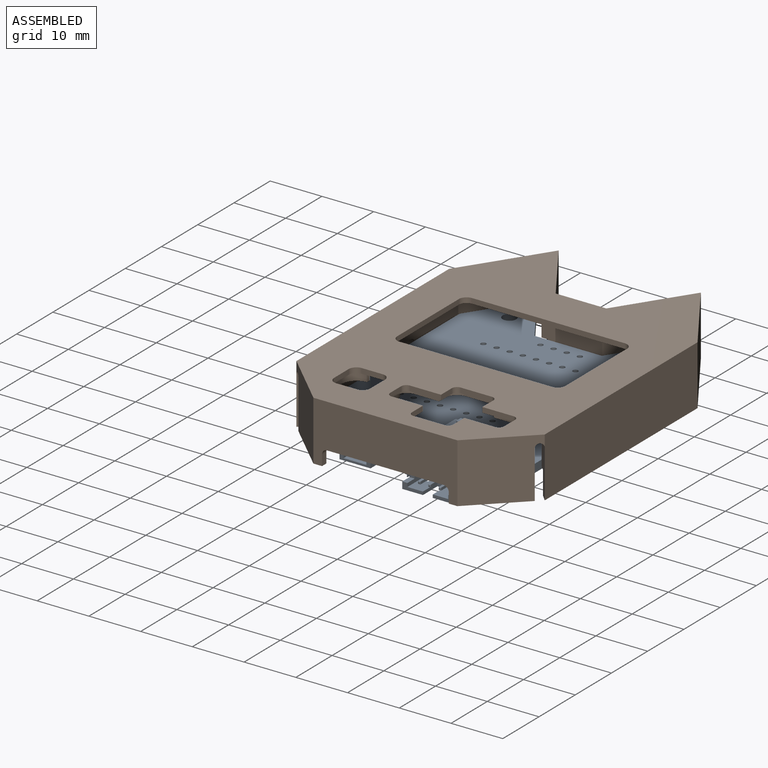
[diagram: assembled view]
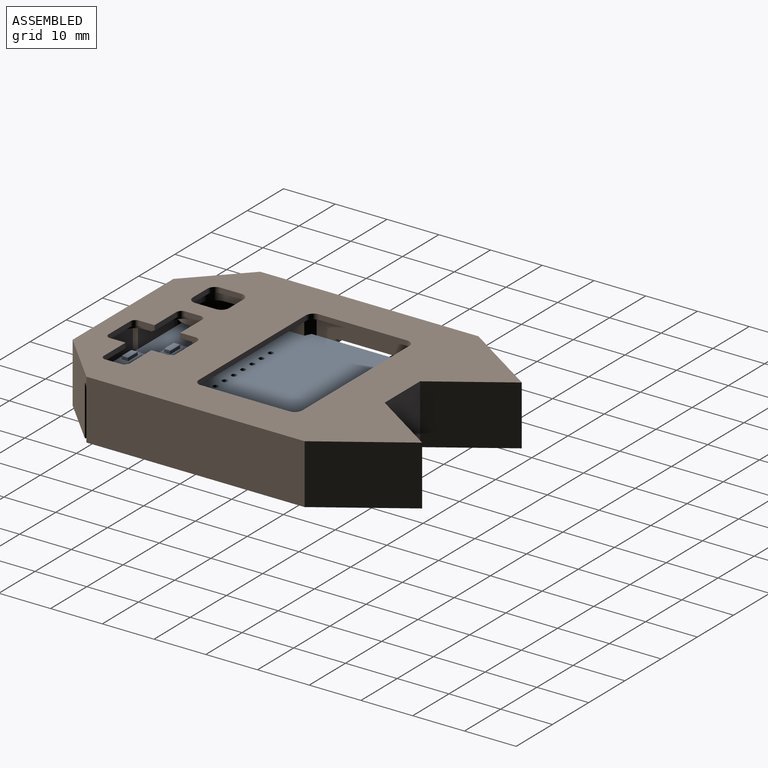
[diagram: assembled view, second angle]
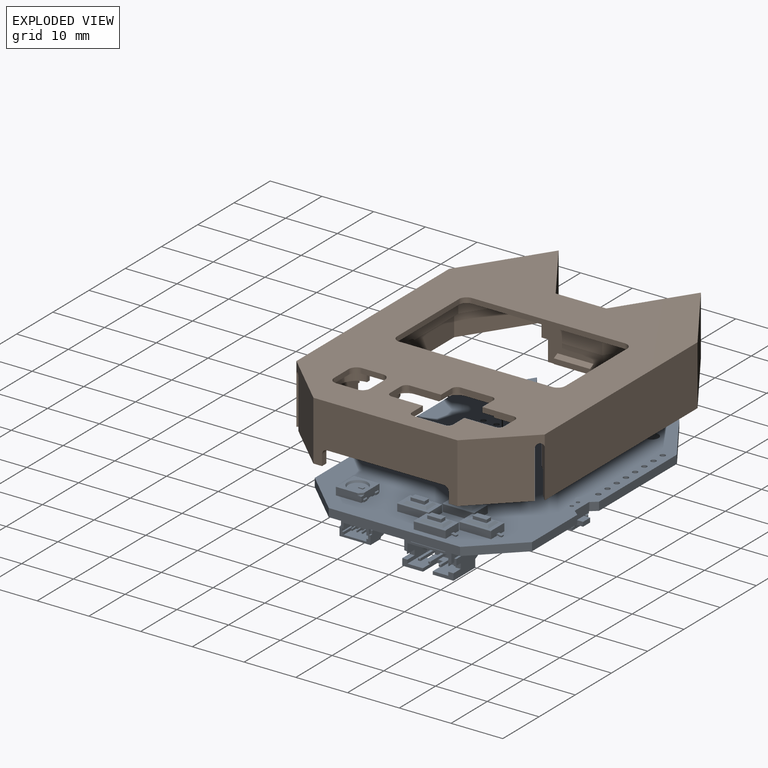
[diagram: exploded view]
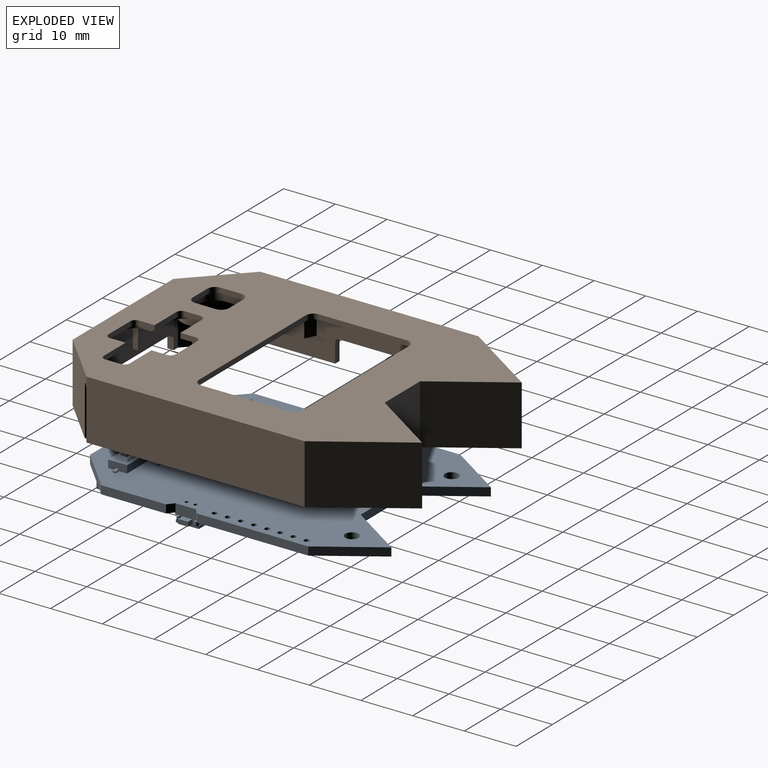
[diagram: exploded view, second angle]
FCSTD DOCUMENT  (FreeCAD 0.20R29410 (Git))
Label: v1.0_Case-Top_v3-Nugget
License: All rights reserved
LicenseURL: http://en.wikipedia.org/wiki/All_rights_reserved
objects: Sketcher::SketchObject×15, Part::Feature×12, PartDesign::Pocket×8, App::Part×7, PartDesign::Pad×6, App::Link×3, PartDesign::Chamfer×3, PartDesign::Plane×2, PartDesign::Mirrored×2, PartDesign::CoordinateSystem×1, PartDesign::Body×1
note: 67 computed .brp shape members not serialized (recipe doc carries the construction recipe); baked Part::Feature solids carry a one-line shape summary decoded from their .brp

FEATURE [Sketcher::SketchObject] CopySketch
  FullyConstrained = true
  sketch-geometry (22):
    g0: LineSegment StartX=-21 StartY=20 StartZ=0 EndX=-13.75 EndY=31 EndZ=0
    g1: LineSegment StartX=-13.75 StartY=31 StartZ=0 EndX=-6.5 EndY=20 EndZ=0
    g2: LineSegment StartX=-6.5 StartY=20 StartZ=0 EndX=6.5 EndY=20 EndZ=0
    g3: LineSegment StartX=6.5 StartY=20 StartZ=0 EndX=13.75 EndY=31 EndZ=0
    g4: LineSegment StartX=13.75 StartY=31 StartZ=0 EndX=21 EndY=20 EndZ=0
    g5: LineSegment StartX=21 StartY=20 StartZ=0 EndX=21 EndY=-20 EndZ=0
    g6: LineSegment StartX=21 StartY=-20 StartZ=0 EndX=12.7 EndY=-28 EndZ=0
    g7: LineSegment StartX=12.7 StartY=-28 StartZ=0 EndX=-12.7 EndY=-28 EndZ=0
    g8: LineSegment StartX=-12.7 StartY=-28 StartZ=0 EndX=-21 EndY=-20 EndZ=0
    g9: LineSegment StartX=-21 StartY=-20 StartZ=0 EndX=-21 EndY=20 EndZ=0
    g10: LineSegment StartX=-24 StartY=20.8997 StartZ=0 EndX=-13.75 EndY=36.4514 EndZ=0
    g11: LineSegment StartX=-13.75 StartY=36.4514 StartZ=0 EndX=-4.88428 EndY=23 EndZ=0
    g12: LineSegment StartX=-4.88428 StartY=23 StartZ=0 EndX=4.88428 EndY=23 EndZ=0
    g13: LineSegment StartX=4.88428 StartY=23 StartZ=0 EndX=13.75 EndY=36.4514 EndZ=0
    g14: LineSegment StartX=13.75 StartY=36.4514 StartZ=0 EndX=24 EndY=20.8997 EndZ=0
    g15: LineSegment StartX=24 StartY=20.8997 StartZ=0 EndX=24 EndY=-21.2751 EndZ=0
    g16: LineSegment StartX=24 StartY=-21.2751 StartZ=0 EndX=13.9104 EndY=-31 EndZ=0
    g17: LineSegment StartX=13.9104 StartY=-31 StartZ=0 EndX=-13.9104 EndY=-31 EndZ=0
    g18: LineSegment StartX=-13.9104 StartY=-31 StartZ=0 EndX=-24 EndY=-21.2751 EndZ=0
    g19: LineSegment StartX=-24 StartY=-21.2751 StartZ=0 EndX=-24 EndY=20.8997 EndZ=0
    g20: LineSegment StartX=-14.7819 StartY=-30.16 StartZ=0 EndX=-12.7 EndY=-28 EndZ=0
    g21: LineSegment StartX=-13.75 StartY=31 StartZ=0 EndX=-11.2451 EndY=32.6509 EndZ=0
  constraints (60):
    c: Coincident(g0,g1)
    c: Coincident(g1,g2)
    c: Coincident(g2,g3)
    c: Coincident(g3,g4)
    c: Coincident(g4,g5)
    c: Vertical(g5)
    c: Coincident(g5,g6)
    c: Coincident(g6,g7)
    c: Coincident(g7,g8)
    c: Coincident(g8,g9)
    c: Coincident(g9,g0)
    c: DistanceY(g9,g9) = 40
    c: DistanceY(g7,g0) = 59
    c: DistanceY(g6,g5) = 8
    c: DistanceX(g2,g2) = 13
    c: DistanceX(g6,g5) = 8.3
    c: Equal(g5,g9)
    c: Equal(g0,g1)
    c: Equal(g1,g3)
    c: Equal(g3,g4)
    c: Symmetric(g2,g1,g-2)
    c: Symmetric(g7,g6,g-2)
    c: Symmetric(g0,g4,g-2)
    c: Horizontal(g2,g4)
    c: DistanceX(g8,g5) = 42
    c: Symmetric(g0,g8,g-1)
    c: Coincident(g10,g11)
    c: Coincident(g11,g12)
    c: Coincident(g12,g13)
    c: Coincident(g13,g14)
    c: Coincident(g14,g15)
    c: Coincident(g15,g16)
    c: Coincident(g16,g17)
    c: Coincident(g17,g18)
    c: Coincident(g18,g19)
    c: Coincident(g19,g10)
    c: Parallel(g10,g0)
    c: Vertical(g19)
    c: Parallel(g4,g14)
    c: Vertical(g15)
    c: Parallel(g18,g8)
    c: Parallel(g6,g16)
    c: Symmetric(g11,g12,g-2)
    c: Symmetric(g17,g16,g-2)
    c: Equal(g19,g15)
    c: Equal(g16,g18)
    c: DistanceX(g18,g8) = 3
    c: DistanceY(g17,g7) = 3
    c: Perpendicular(g18,g20)
    c: PointOnObject(g20,g18)
    c: Distance(g20) = 3
    c: Coincident(g20,g7)
    c: PointOnObject(g21,g11)
    c: Perpendicular(g1,g21)
    c: Distance(g21) = 3
    c: Horizontal(g13,g10)
    c: Vertical(g10,g0)
    c: DistanceY(g1,g11) = 3
    c: Parallel(g1,g11)
    c: Coincident(g21,g0)
FEATURE [PartDesign::Pad] Pad
  AllowMultiFace = false
  Direction = (0,0,1)
  Length = 11.5
  Length2 = 100
  Profile = -> CopySketch
  Type = 0
FEATURE [Sketcher::SketchObject] CopySketch002
  FullyConstrained = true
  sketch-geometry (22):
    g0: LineSegment StartX=-21 StartY=20 StartZ=0 EndX=-13.75 EndY=31 EndZ=0
    g1: LineSegment StartX=-13.75 StartY=31 StartZ=0 EndX=-6.5 EndY=20 EndZ=0
    g2: LineSegment StartX=-6.5 StartY=20 StartZ=0 EndX=6.5 EndY=20 EndZ=0
    g3: LineSegment StartX=6.5 StartY=20 StartZ=0 EndX=13.75 EndY=31 EndZ=0
    g4: LineSegment StartX=13.75 StartY=31 StartZ=0 EndX=21 EndY=20 EndZ=0
    g5: LineSegment StartX=21 StartY=20 StartZ=0 EndX=21 EndY=-20 EndZ=0
    g6: LineSegment StartX=21 StartY=-20 StartZ=0 EndX=12.7 EndY=-28 EndZ=0
    g7: LineSegment StartX=12.7 StartY=-28 StartZ=0 EndX=-12.7 EndY=-28 EndZ=0
    g8: LineSegment StartX=-12.7 StartY=-28 StartZ=0 EndX=-21 EndY=-20 EndZ=0
    g9: LineSegment StartX=-21 StartY=-20 StartZ=0 EndX=-21 EndY=20 EndZ=0
    g10: LineSegment StartX=-22.8 StartY=20.5398 StartZ=0 EndX=-13.75 EndY=34.2709 EndZ=0
    g11: LineSegment StartX=-13.75 StartY=34.2709 StartZ=0 EndX=-5.33284 EndY=21.5 EndZ=0
    g12: LineSegment StartX=-5.33284 StartY=21.5 StartZ=0 EndX=5.33284 EndY=21.5 EndZ=0
    g13: LineSegment StartX=5.33284 StartY=21.5 StartZ=0 EndX=13.75 EndY=34.2709 EndZ=0
    g14: LineSegment StartX=13.75 StartY=34.2709 StartZ=0 EndX=22.8 EndY=20.5398 EndZ=0
    g15: LineSegment StartX=22.8 StartY=20.5398 StartZ=0 EndX=22.8 EndY=-20.7651 EndZ=0
    g16: LineSegment StartX=22.8 StartY=-20.7651 StartZ=0 EndX=13.4263 EndY=-29.8 EndZ=0
    g17: LineSegment StartX=13.4263 StartY=-29.8 StartZ=0 EndX=-13.4263 EndY=-29.8 EndZ=0
    g18: LineSegment StartX=-13.4263 StartY=-29.8 StartZ=0 EndX=-22.8 EndY=-20.7651 EndZ=0
    g19: LineSegment StartX=-22.8 StartY=-20.7651 StartZ=0 EndX=-22.8 EndY=20.5398 EndZ=0
    g20: LineSegment StartX=-13.9492 StartY=-29.296 StartZ=0 EndX=-12.7 EndY=-28 EndZ=0
    g21: LineSegment StartX=-13.75 StartY=31 StartZ=0 EndX=-12.2471 EndY=31.9906 EndZ=0
  constraints (60):
    c: Coincident(g0,g1)
    c: Coincident(g1,g2)
    c: Coincident(g2,g3)
    c: Coincident(g3,g4)
    c: Coincident(g4,g5)
    c: Vertical(g5)
    c: Coincident(g5,g6)
    c: Coincident(g6,g7)
    c: Coincident(g7,g8)
    c: Coincident(g8,g9)
    c: Coincident(g9,g0)
    c: DistanceY(g9,g9) = 40
    c: DistanceY(g7,g0) = 59
    c: DistanceY(g6,g5) = 8
    c: DistanceX(g2,g2) = 13
    c: DistanceX(g6,g5) = 8.3
    c: Equal(g5,g9)
    c: Equal(g0,g1)
    c: Equal(g1,g3)
    c: Equal(g3,g4)
    c: Symmetric(g2,g1,g-2)
    c: Symmetric(g7,g6,g-2)
    c: Symmetric(g0,g4,g-2)
    c: Horizontal(g2,g4)
    c: DistanceX(g8,g5) = 42
    c: Symmetric(g0,g8,g-1)
    c: Coincident(g10,g11)
    c: Coincident(g11,g12)
    c: Coincident(g12,g13)
    c: Coincident(g13,g14)
    c: Coincident(g14,g15)
    c: Coincident(g15,g16)
    c: Coincident(g16,g17)
    c: Coincident(g17,g18)
    c: Coincident(g18,g19)
    c: Coincident(g19,g10)
    c: Parallel(g10,g0)
    c: Vertical(g19)
    c: Parallel(g4,g14)
    c: Vertical(g15)
    c: Parallel(g18,g8)
    c: Parallel(g6,g16)
    c: Symmetric(g11,g12,g-2)
    c: Symmetric(g17,g16,g-2)
    c: Equal(g19,g15)
    c: Equal(g16,g18)
    c: DistanceX(g18,g8) = 1.8
    c: DistanceY(g17,g7) = 1.8
    c: Perpendicular(g18,g20)
    c: PointOnObject(g20,g18)
    c: Distance(g20) = 1.8
    c: Coincident(g20,g7)
    c: PointOnObject(g21,g11)
    c: Perpendicular(g1,g21)
    c: Distance(g21) = 1.8
    c: Horizontal(g13,g10)
    c: Vertical(g10,g0)
    c: DistanceY(g1,g11) = 1.5
    c: Parallel(g1,g11)
    c: Coincident(g21,g0)
FEATURE [PartDesign::Pocket] Pocket
  AllowMultiFace = false
  BaseFeature = -> Pad
  Direction = (0,0,-1)
  Length = 10.5
  Length2 = 100
  Profile = -> CopySketch002
  Reversed = true
  Type = 0
FEATURE [Sketcher::SketchObject] Sketch003
  ExternalGeometry = -> [Pocket]
  FullyConstrained = true
  MapMode = 5
  Placement = pos=(0,0,11.5) rot=(0,0,1;0rad)
  Support = -> [Pocket]
  sketch-geometry (57):
    g0: LineSegment StartX=3 StartY=-14.5 StartZ=0 EndX=9 EndY=-14.5 EndZ=0
    g1: LineSegment StartX=10 StartY=-15.5 StartZ=0 EndX=10 EndY=-18.5 EndZ=0
    g2: LineSegment StartX=9 StartY=-27.5 StartZ=0 EndX=3 EndY=-27.5 EndZ=0
    g3: LineSegment StartX=2 StartY=-26.5 StartZ=0 EndX=2 EndY=-23.5 EndZ=0
    g4: LineSegment StartX=16 StartY=-23.5 StartZ=0 EndX=10 EndY=-23.5 EndZ=0
    g5: LineSegment StartX=-5 StartY=-22.5 StartZ=0 EndX=-5 EndY=-19.5 EndZ=0
    g6: LineSegment StartX=-4 StartY=-18.5 StartZ=0 EndX=2 EndY=-18.5 EndZ=0
    g7: LineSegment StartX=17 StartY=-19.5 StartZ=0 EndX=17 EndY=-22.5 EndZ=0
    g8: LineSegment StartX=-14 StartY=-17.5 StartZ=0 EndX=-10 EndY=-17.5 EndZ=0
    g9: LineSegment StartX=-8.5 StartY=-19 StartZ=0 EndX=-8.5 EndY=-23 EndZ=0
    g10: LineSegment StartX=-10 StartY=-24.5 StartZ=0 EndX=-14 EndY=-24.5 EndZ=0
    g11: LineSegment StartX=-15.5 StartY=-23 StartZ=0 EndX=-15.5 EndY=-19 EndZ=0
    g12: LineSegment StartX=10 StartY=-18.5 StartZ=0 EndX=16 EndY=-18.5 EndZ=0
    g13: LineSegment StartX=2 StartY=-18.5 StartZ=0 EndX=2 EndY=-15.5 EndZ=0
    g14: LineSegment StartX=10 StartY=-23.5 StartZ=0 EndX=10 EndY=-26.5 EndZ=0
    g15: LineSegment StartX=2 StartY=-23.5 StartZ=0 EndX=-4 EndY=-23.5 EndZ=0
    g16: ArcOfCircle CenterX=-14 CenterY=-19 CenterZ=0 NormalX=0 NormalY=0 NormalZ=1 AngleXU=0 Radius=1.5 StartAngle=1.5708 EndAngle=3.14159
    g17: GeomPoint X=-15.5 Y=-17.5 Z=0
    g18: ArcOfCircle CenterX=-10 CenterY=-19 CenterZ=0 NormalX=0 NormalY=0 NormalZ=1 AngleXU=0 Radius=1.5 StartAngle=-9e-16 EndAngle=1.5708
    g19: GeomPoint X=-8.5 Y=-17.5 Z=0
    g20: ArcOfCircle CenterX=-10 CenterY=-23 CenterZ=0 NormalX=0 NormalY=0 NormalZ=1 AngleXU=0 Radius=1.5 StartAngle=4.71239 EndAngle=6.28319
    g21: GeomPoint X=-8.5 Y=-24.5 Z=0
    g22: ArcOfCircle CenterX=-14 CenterY=-23 CenterZ=0 NormalX=0 NormalY=0 NormalZ=1 AngleXU=0 Radius=1.5 StartAngle=3.14159 EndAngle=4.71239
    g23: GeomPoint X=-15.5 Y=-24.5 Z=0
    g24: ArcOfCircle CenterX=-4 CenterY=-19.5 CenterZ=0 NormalX=0 NormalY=0 NormalZ=1 AngleXU=0 Radius=1 StartAngle=1.5708 EndAngle=3.14159
    g25: GeomPoint X=-5 Y=-18.5 Z=0
    g26: ArcOfCircle CenterX=-4 CenterY=-22.5 CenterZ=0 NormalX=0 NormalY=0 NormalZ=1 AngleXU=0 Radius=1 StartAngle=3.14159 EndAngle=4.71239
    g27: GeomPoint X=-5 Y=-23.5 Z=0
    g28: ArcOfCircle CenterX=3 CenterY=-26.5 CenterZ=0 NormalX=0 NormalY=0 NormalZ=1 AngleXU=0 Radius=1 StartAngle=3.14159 EndAngle=4.71239
    g29: GeomPoint X=2 Y=-27.5 Z=0
    g30: ArcOfCircle CenterX=9 CenterY=-26.5 CenterZ=0 NormalX=0 NormalY=0 NormalZ=1 AngleXU=0 Radius=1 StartAngle=4.71239 EndAngle=6.28319
    g31: GeomPoint X=10 Y=-27.5 Z=0
    g32: ArcOfCircle CenterX=16 CenterY=-22.5 CenterZ=0 NormalX=0 NormalY=0 NormalZ=1 AngleXU=0 Radius=1 StartAngle=4.71239 EndAngle=6.28319
    g33: GeomPoint X=17 Y=-23.5 Z=0
    g34: ArcOfCircle CenterX=16 CenterY=-19.5 CenterZ=0 NormalX=0 NormalY=0 NormalZ=1 AngleXU=0 Radius=1 StartAngle=2e-16 EndAngle=1.5708
    g35: GeomPoint X=17 Y=-18.5 Z=0
    g36: ArcOfCircle CenterX=9 CenterY=-15.5 CenterZ=0 NormalX=0 NormalY=0 NormalZ=1 AngleXU=0 Radius=1 StartAngle=-9e-16 EndAngle=1.5708
    g37: GeomPoint X=10 Y=-14.5 Z=0
    g38: ArcOfCircle CenterX=3 CenterY=-15.5 CenterZ=0 NormalX=0 NormalY=0 NormalZ=1 AngleXU=0 Radius=1 StartAngle=1.5708 EndAngle=3.14159
    g39: GeomPoint X=2 Y=-14.5 Z=0
    g40: LineSegment StartX=6 StartY=-14.5 StartZ=0 EndX=6 EndY=-27.5 EndZ=0
    g41: LineSegment StartX=-5 StartY=-21 StartZ=0 EndX=17 EndY=-21 EndZ=0
    g42: GeomPoint X=-12 Y=-21 Z=0
    g43: GeomPoint X=6 Y=-21 Z=0
    g44: LineSegment StartX=-14.75 StartY=14 StartZ=0 EndX=14.75 EndY=14 EndZ=0
    g45: LineSegment StartX=16.25 StartY=12.5 StartZ=0 EndX=16.25 EndY=-4.5 EndZ=0
    g46: LineSegment StartX=14.75 StartY=-6 StartZ=0 EndX=-14.75 EndY=-6 EndZ=0
    g47: LineSegment StartX=-16.25 StartY=-4.5 StartZ=0 EndX=-16.25 EndY=12.5 EndZ=0
    g48: ArcOfCircle CenterX=-14.75 CenterY=12.5 CenterZ=0 NormalX=0 NormalY=0 NormalZ=1 AngleXU=0 Radius=1.5 StartAngle=1.5708 EndAngle=3.14159
    g49: GeomPoint X=-16.25 Y=14 Z=0
    g50: ArcOfCircle CenterX=-14.75 CenterY=-4.5 CenterZ=0 NormalX=0 NormalY=0 NormalZ=1 AngleXU=0 Radius=1.5 StartAngle=3.14159 EndAngle=4.71239
    g51: GeomPoint X=-16.25 Y=-6 Z=0
    g52: ArcOfCircle CenterX=14.75 CenterY=-4.5 CenterZ=0 NormalX=0 NormalY=0 NormalZ=1 AngleXU=0 Radius=1.5 StartAngle=4.71239 EndAngle=6.28319
    g53: GeomPoint X=16.25 Y=-6 Z=0
    g54: ArcOfCircle CenterX=14.75 CenterY=12.5 CenterZ=0 NormalX=0 NormalY=0 NormalZ=1 AngleXU=0 Radius=1.5 StartAngle=2e-16 EndAngle=1.5708
    g55: GeomPoint X=16.25 Y=14 Z=0
    g56: GeomPoint X=1e-16 Y=4 Z=0
  constraints (132):
    c: Horizontal(g0)
    c: Horizontal(g2)
    c: Vertical(g1)
    c: Vertical(g3)
    c: Horizontal(g4)
    c: Horizontal(g6)
    c: Vertical(g5)
    c: Vertical(g7)
    c: Horizontal(g8)
    c: Horizontal(g10)
    c: Vertical(g9)
    c: Vertical(g11)
    c: Coincident(g13,g6)
    c: Coincident(g1,g12)
    c: Coincident(g4,g14)
    c: Coincident(g15,g3)
    c: PointOnObject(g17,g8)
    c: PointOnObject(g17,g11)
    c: Tangent(g8,g16) = 1.5708
    c: Tangent(g11,g16) = 1.5708
    c: PointOnObject(g19,g8)
    c: PointOnObject(g19,g9)
    c: Tangent(g8,g18) = 1.5708
    c: Tangent(g9,g18) = 1.5708
    c: PointOnObject(g21,g9)
    c: PointOnObject(g21,g10)
    c: Tangent(g9,g20) = 1.5708
    c: Tangent(g10,g20) = 1.5708
    c: PointOnObject(g23,g11)
    c: PointOnObject(g23,g10)
    c: Tangent(g11,g22) = 1.5708
    c: Tangent(g10,g22) = 1.5708
    c: PointOnObject(g25,g6)
    c: PointOnObject(g25,g5)
    c: Tangent(g6,g24) = 1.5708
    c: Tangent(g5,g24) = 1.5708
    c: PointOnObject(g27,g5)
    c: PointOnObject(g27,g15)
    c: Tangent(g5,g26) = 1.5708
    c: Tangent(g15,g26) = 1.5708
    c: PointOnObject(g29,g3)
    c: PointOnObject(g29,g2)
    c: Tangent(g3,g28) = 1.5708
    c: Tangent(g2,g28) = 1.5708
    c: PointOnObject(g31,g2)
    c: PointOnObject(g31,g14)
    c: Tangent(g2,g30) = 1.5708
    c: Tangent(g14,g30) = 1.5708
    c: PointOnObject(g33,g4)
    c: PointOnObject(g33,g7)
    c: Tangent(g4,g32) = 1.5708
    c: Tangent(g7,g32) = 1.5708
    c: PointOnObject(g35,g12)
    c: PointOnObject(g35,g7)
    c: Tangent(g12,g34) = 1.5708
    c: Tangent(g7,g34) = 1.5708
    c: PointOnObject(g37,g0)
    c: PointOnObject(g37,g1)
    c: Tangent(g0,g36) = 1.5708
    c: Tangent(g1,g36) = 1.5708
    c: PointOnObject(g39,g13)
    c: PointOnObject(g39,g0)
    c: Tangent(g13,g38) = 1.5708
    c: Tangent(g0,g38) = 1.5708
    c: Equal(g36,g38)
    c: Equal(g38,g24)
    c: Equal(g24,g26)
    c: Equal(g26,g28)
    c: Equal(g28,g30)
    c: Equal(g30,g32)
    c: Equal(g32,g34)
    c: Symmetric(g0,g0,g40)
    c: Symmetric(g2,g2,g40)
    c: Vertical(g40)
    c: PointOnObject(g41,g5)
    c: Horizontal(g41)
    c: Symmetric(g7,g7,g41)
    c: Horizontal(g12)
    c: Horizontal(g15)
    c: Horizontal(g3,g4)
    c: Horizontal(g1,g6)
    c: Vertical(g13)
    c: Vertical(g6,g3)
    c: Vertical(g14)
    c: Equal(g12,g6)
    c: Equal(g13,g3)
    c: Radius(g32) = 1
    c: Equal(g16,g18)
    c: Equal(g18,g20)
    c: Equal(g20,g22)
    c: Equal(g10,g9)
    c: DistanceY(g10,g8) = 7
    c: Symmetric(g18,g22,g42)
    c: Horizontal(g42,g41)
    c: Radius(g18) = 1.5
    c: PointOnObject(g43,g40)
    c: PointOnObject(g43,g41)
    c: DistanceX(g-1,g43) = 6
    c: DistanceX(g42,g-1) = 12
    c: DistanceX(g3,g4) = 8
    c: DistanceX(g41,g41) = 22
    c: DistanceY(g4,g1) = 5
    c: DistanceY(g40,g40) = 13
    c: Horizontal(g44)
    c: Horizontal(g46)
    c: Vertical(g45)
    c: Vertical(g47)
    c: PointOnObject(g49,g47)
    c: PointOnObject(g49,g44)
    c: Tangent(g47,g48) = 1.5708
    c: Tangent(g44,g48) = 1.5708
    c: PointOnObject(g51,g47)
    c: PointOnObject(g51,g46)
    c: Tangent(g47,g50) = 1.5708
    c: Tangent(g46,g50) = 1.5708
    c: PointOnObject(g53,g46)
    c: PointOnObject(g53,g45)
    c: Tangent(g46,g52) = 1.5708
    c: Tangent(g45,g52) = 1.5708
    c: PointOnObject(g55,g44)
    c: PointOnObject(g55,g45)
    c: Tangent(g44,g54) = 1.5708
    c: Tangent(g45,g54) = 1.5708
    c: Equal(g54,g52)
    c: Equal(g52,g50)
    c: Radius(g48) = 1.5
    c: Symmetric(g48,g54,g-2)
    c: DistanceX(g47,g45) = 32.5
    c: DistanceY(g46,g44) = 20
    c: Symmetric(g50,g54,g56)
    c: DistanceY(g-1,g56) = 4
    c: DistanceY(g-3,g43) = 10
FEATURE [PartDesign::Pocket] Pocket001
  AllowMultiFace = false
  BaseFeature = -> Pocket
  Direction = (0,0,-1)
  Length = 5
  Length2 = 100
  Profile = -> Sketch003
  Type = 0
FEATURE [Sketcher::SketchObject] Sketch004
  FullyConstrained = false
  MapMode = 5
  Placement = pos=(-24,0,0) rot=(0.57735,-0.57735,-0.57735;2.0944rad)
  sketch-geometry (6):
    g0: LineSegment StartX=-8.53983 StartY=0 StartZ=0 EndX=5.96017 EndY=0 EndZ=0
    g1: LineSegment StartX=5.96017 StartY=0 StartZ=0 EndX=5.96017 EndY=3.5 EndZ=0
    g2: LineSegment StartX=4.46017 StartY=5 StartZ=0 EndX=-7.03983 EndY=5 EndZ=0
    g3: LineSegment StartX=-8.53983 StartY=3.5 StartZ=0 EndX=-8.53983 EndY=0 EndZ=0
    g4: ArcOfCircle CenterX=4.46017 CenterY=3.5 CenterZ=0 NormalX=0 NormalY=0 NormalZ=1 AngleXU=0 Radius=1.5 StartAngle=1e-16 EndAngle=1.5708
    g5: ArcOfCircle CenterX=-7.03983 CenterY=3.5 CenterZ=0 NormalX=0 NormalY=0 NormalZ=1 AngleXU=0 Radius=1.5 StartAngle=1.5708 EndAngle=3.14159
  constraints (15):
    c: Coincident(g0,g1)
    c: Coincident(g3,g0)
    c: Horizontal(g0)
    c: Horizontal(g2)
    c: Vertical(g1)
    c: Vertical(g3)
    c: PointOnObject(g0,g-1)
    c: Tangent(g2,g4) = -1.5708
    c: Tangent(g1,g4) = -1.5708
    c: Tangent(g3,g5) = -1.5708
    c: Tangent(g2,g5) = -1.5708
    c: Equal(g5,g4)
    c: Radius(g4) = 1.5
    c: DistanceX(g0,g0) = 14.5
    c: DistanceY(g0,g2) = 5
FEATURE [Sketcher::SketchObject] Sketch
  ExternalGeometry = -> [Pocket001]
  FullyConstrained = true
  MapMode = 5
  Placement = pos=(0,0,10.5) rot=(1,0,0;3.14159rad)
  Support = -> [Pocket001]
  sketch-geometry (35):
    g0: LineSegment StartX=-22.8 StartY=-20.5398 StartZ=0 EndX=-13.75 EndY=-34.2709 EndZ=0
    g1: LineSegment StartX=-13.75 StartY=-34.2709 StartZ=0 EndX=-5.33284 EndY=-21.5 EndZ=0
    g2: LineSegment StartX=-5.33284 StartY=-21.5 StartZ=0 EndX=5.33284 EndY=-21.5 EndZ=0
    g3: LineSegment StartX=5.33284 StartY=-21.5 StartZ=0 EndX=13.75 EndY=-34.2709 EndZ=0
    g4: LineSegment StartX=13.75 StartY=-34.2709 StartZ=0 EndX=22.8 EndY=-20.5398 EndZ=0
    g5: LineSegment StartX=22.8 StartY=-20.5398 StartZ=0 EndX=22.8 EndY=20.7651 EndZ=0
    g6: LineSegment StartX=22.8 StartY=20.7651 StartZ=0 EndX=13.4263 EndY=29.8 EndZ=0
    g7: LineSegment StartX=13.4263 StartY=29.8 StartZ=0 EndX=-13.4263 EndY=29.8 EndZ=0
    g8: LineSegment StartX=-13.4263 StartY=29.8 StartZ=0 EndX=-22.8 EndY=20.7651 EndZ=0
    g9: LineSegment StartX=-22.8 StartY=20.7651 StartZ=0 EndX=-22.8 EndY=-20.5398 EndZ=0
    g10: LineSegment StartX=-21.8 StartY=20.34 StartZ=0 EndX=-13.0228 EndY=28.8 EndZ=0
    g11: LineSegment StartX=-13.0228 StartY=28.8 StartZ=0 EndX=13.0228 EndY=28.8 EndZ=0
    g12: LineSegment StartX=13.0228 StartY=28.8 StartZ=0 EndX=21.8 EndY=20.34 EndZ=0
    g13: LineSegment StartX=21.8 StartY=20.34 StartZ=0 EndX=21.8 EndY=15.84 EndZ=0
    g14: LineSegment StartX=21.8 StartY=15.84 StartZ=0 EndX=19.8 EndY=14.84 EndZ=0
    g15: LineSegment StartX=19.8 StartY=14.84 StartZ=0 EndX=19.8 EndY=9.84003 EndZ=0
    g16: LineSegment StartX=19.8 StartY=9.84003 StartZ=0 EndX=21.8 EndY=8.84003 EndZ=0
    g17: LineSegment StartX=21.8 StartY=8.84003 StartZ=0 EndX=21.8 EndY=-20.2399 EndZ=0
    g18: LineSegment StartX=21.8 StartY=-20.2399 StartZ=0 EndX=13.75 EndY=-32.4537 EndZ=0
    g19: LineSegment StartX=13.75 StartY=-32.4537 StartZ=0 EndX=5.87141 EndY=-20.5 EndZ=0
    g20: LineSegment StartX=5.87141 StartY=-20.5 StartZ=0 EndX=-5.87141 EndY=-20.5 EndZ=0
    g21: LineSegment StartX=-5.87141 StartY=-20.5 StartZ=0 EndX=-13.75 EndY=-32.4537 EndZ=0
    g22: LineSegment StartX=-13.75 StartY=-32.4537 StartZ=0 EndX=-21.8 EndY=-20.2399 EndZ=0
    g23: LineSegment StartX=-21.8 StartY=-20.2399 StartZ=0 EndX=-21.8 EndY=8.84003 EndZ=0
    g24: LineSegment StartX=-21.8 StartY=8.84003 StartZ=0 EndX=-19.8 EndY=9.84003 EndZ=0
    g25: LineSegment StartX=-19.8 StartY=9.84003 StartZ=0 EndX=-19.8 EndY=14.84 EndZ=0
    g26: LineSegment StartX=-19.8 StartY=14.84 StartZ=0 EndX=-21.8 EndY=15.84 EndZ=0
    g27: LineSegment StartX=-21.8 StartY=15.84 StartZ=0 EndX=-21.8 EndY=20.34 EndZ=0
    g28: LineSegment StartX=-21.8 StartY=15.84 StartZ=0 EndX=-21.8 EndY=8.84003 EndZ=0
    g29: LineSegment StartX=21.8 StartY=15.84 StartZ=0 EndX=21.8 EndY=8.84003 EndZ=0
    g30: LineSegment StartX=-21.8 StartY=12.34 StartZ=0 EndX=-19.8 EndY=12.34 EndZ=0
    g31: LineSegment StartX=19.8 StartY=12.34 StartZ=0 EndX=21.8 EndY=12.34 EndZ=0
    g32: LineSegment StartX=13.75 StartY=-32.4537 StartZ=0 EndX=12.915 EndY=-33.004 EndZ=0
    g33: LineSegment StartX=14.585 StartY=-33.004 StartZ=0 EndX=13.75 EndY=-32.4537 EndZ=0
    g34: LineSegment StartX=22.106 StartY=20.0451 StartZ=0 EndX=22.8 EndY=20.7651 EndZ=0
  constraints (85):
    c: Coincident(g0,g1)
    c: Coincident(g1,g2)
    c: Coincident(g2,g3)
    c: Coincident(g3,g4)
    c: Coincident(g4,g5)
    c: Coincident(g5,g6)
    c: Coincident(g6,g7)
    c: Coincident(g7,g8)
    c: Coincident(g8,g9)
    c: Coincident(g9,g0)
    c: Symmetric(g7,g6,g-2)
    c: Symmetric(g8,g5,g-2)
    c: Symmetric(g2,g1,g-2)
    c: Symmetric(g0,g4,g-2)
    c: Symmetric(g0,g3,g-2)
    c: Coincident(g-3,g3)
    c: Coincident(g2,g-3)
    c: Coincident(g-4,g4)
    c: Coincident(g-5,g7)
    c: Coincident(g5,g-4)
    c: Coincident(g10,g11)
    c: Coincident(g11,g12)
    c: Coincident(g12,g13)
    c: Vertical(g13)
    c: Coincident(g13,g14)
    c: Coincident(g14,g15)
    c: Coincident(g15,g16)
    c: Coincident(g16,g17)
    c: Vertical(g17)
    c: Coincident(g17,g18)
    c: Coincident(g18,g19)
    c: Coincident(g19,g20)
    c: Coincident(g20,g21)
    c: Coincident(g21,g22)
    c: Coincident(g22,g23)
    c: Coincident(g23,g24)
    c: Coincident(g24,g25)
    c: Coincident(g25,g26)
    c: Coincident(g26,g27)
    c: Coincident(g27,g10)
    c: Symmetric(g10,g11,g-2)
    c: Symmetric(g10,g12,g-2)
    c: Coincident(g28,g26)
    c: Coincident(g28,g23)
    c: Coincident(g29,g13)
    c: Coincident(g29,g16)
    c: Vertical(g29)
    c: Vertical(g28)
    c: Equal(g28,g29)
    c: Symmetric(g26,g13,g-2)
    c: Horizontal(g30)
    c: Horizontal(g31)
    c: Equal(g30,g31)
    c: Symmetric(g26,g23,g30)
    c: Symmetric(g25,g24,g30)
    c: Vertical(g25)
    c: Symmetric(g15,g14,g31)
    c: Vertical(g15)
    c: Symmetric(g16,g13,g31)
    c: Equal(g15,g25)
    c: DistanceY(g27,g27) = 4.5
    c: Symmetric(g17,g22,g-2)
    c: Symmetric(g19,g20,g-2)
    c: Coincident(g32,g18)
    c: PointOnObject(g32,g3)
    c: PointOnObject(g33,g4)
    c: Coincident(g33,g18)
    c: Perpendicular(g18,g33)
    c: Perpendicular(g19,g32)
    c: Equal(g32,g33)
    c: Parallel(g4,g18)
    c: Symmetric(g18,g21,g-2)
    c: Parallel(g3,g19)
    c: DistanceY(g2,g19) = 1
    c: DistanceY(g11,g6) = 1
    c: Parallel(g6,g12)
    c: DistanceX(g12,g5) = 1
    c: Coincident(g34,g5)
    c: PointOnObject(g34,g12)
    c: Perpendicular(g12,g34)
    c: Distance(g34) = 1
    c: DistanceY(g28,g28) = 7
    c: DistanceX(g30,g30) = 2
    c: DistanceY(g25,g25) = 5
    c: Distance(g33) = 1
FEATURE [PartDesign::CoordinateSystem] Local_CS_f3bd
  AttacherType = Attacher::AttachEngine3D
  MapMode = 2
  Support = -> [X_Axis002]
FEATURE [Sketcher::SketchObject] PCB_Sketch_f3bd
  FullyConstrained = true
FEATURE [Part::Feature] Part__Feature  label="1TS003B v7"
  shape: bbox 4.7 x 2.3 x 2.65 mm, 62 faces (baked)
FEATURE [Part::Feature] Part__Feature001  label="1TS003B v008"
  shape: bbox 1.95 x 0.85 x 1.2 mm, 6 faces (baked)
FEATURE [Part::Feature] Part__Feature002  label="JST-PH-3 v2"
  shape: bbox 0.5 x 2 x 3.3 mm, 6 faces (baked)
FEATURE [Part::Feature] Part__Feature003  label="JST-PH-3 v003"
  shape: bbox 0.5 x 3.35 x 8.2 mm, 22 faces (baked)
FEATURE [Part::Feature] Part__Feature004  label="JST-PH-3 v004"
  shape: bbox 0.5 x 3.35 x 8.2 mm, 22 faces (baked)
FEATURE [Part::Feature] Part__Feature005  label="JST-PH-3 v005"
  shape: bbox 9.9 x 4.8 x 7.6 mm, 69 faces (baked)
FEATURE [Part::Feature] Part__Feature006  label="JST-PH-3 v006"
  shape: bbox 0.5 x 3.35 x 8.2 mm, 22 faces (baked)
FEATURE [Part::Feature] Part__Feature007  label="JST-PH-3 v007"
  shape: bbox 0.5 x 2 x 3.3 mm, 6 faces (baked)
FEATURE [App::Part] JST_PH_3_v2  label="J3_JST-PH-3 v008_000062a81206[3]"
  Group = -> [Part__Feature002,Part__Feature003,Part__Feature004,Part__Feature005,Part__Feature006,Part__Feature007]
  Origin = -> Origin009
  Placement = pos=(5.2865,-29.25,-1.6) rot=(0,0.707107,-0.707107;3.14159rad)
FEATURE [Part::Feature] Pcb_f3bd
  shape: bbox 41.99 x 58.99 x 1.6 mm, 48 faces (baked)
FEATURE [App::Part] Board_Geoms_f3bd
  Group = -> [Pcb_f3bd,PCB_Sketch_f3bd]
  Origin = -> Origin001
FEATURE [App::Link] SW1_Tactile_SMD_3x6x2_5mm_000061248792_2__ln_  label="SW2_Tactile_SMD_3x6x2.5mm_0000612487b0"
  LinkPlacement = pos=(6,-26.5,0) rot=(1,0,0;1.5708rad)
  LinkedObject = -> Shape001
  Placement = pos=(6,-26.5,0) rot=(1,0,0;1.5708rad)
FEATURE [App::Link] SW1_Tactile_SMD_3x6x2_5mm_000061248792_2__ln_001  label="SW3_Tactile_SMD_3x6x2.5mm_0000612487ce"
  LinkPlacement = pos=(0,-22.5,0) rot=(1,0,0;1.5708rad)
  LinkedObject = -> Shape001
  Placement = pos=(0,-22.5,0) rot=(1,0,0;1.5708rad)
FEATURE [App::Link] SW1_Tactile_SMD_3x6x2_5mm_000061248792_2__ln_002  label="SW4_Tactile_SMD_3x6x2.5mm_0000612487ec"
  LinkPlacement = pos=(12,-22.5,0) rot=(1,0,0;1.5708rad)
  LinkedObject = -> Shape001
  Placement = pos=(12,-22.5,0) rot=(1,0,0;1.5708rad)
FEATURE [Part::Feature] Shape  label="D1_risk1E78E08Bni4a_00006124843f[2]"
  Placement = pos=(-12,-22.5,0) rot=(0,0,-1;1.5708rad)
  shape: bbox 5.35 x 4.95 x 1.7 mm, 58 faces (baked)
FEATURE [Part::Feature] Shape001  label="SW1_Tactile_SMD_3x6x2.5mm_000061248792[2]"
  Placement = pos=(6,-18.5,0) rot=(1,0,0;1.5708rad)
  shape: bbox 8.052 x 3.658 x 2.515 mm, 48 faces (baked)
FEATURE [Part::Feature] Shape002  label="J2_SPARKFUN_QWIIC_RIGHT_ANGLE_X_0000628243ea[2]"
  Placement = pos=(-7.35,-9.35,-1.6) rot=(-1,0,0;1.5708rad)
  shape: bbox 6 x 4.95 x 2.96 mm, 89 faces (baked)
FEATURE [App::Part] Top_f3bd
  Group = -> [Shape,Shape001,SW1_Tactile_SMD_3x6x2_5mm_000061248792_2__ln_,SW1_Tactile_SMD_3x6x2_5mm_000061248792_2__ln_001,SW1_Tactile_SMD_3x6x2_5mm_000061248792_2__ln_002]
  Origin = -> Origin004
FEATURE [App::Part] _TS003B_v7  label="SW5_1TS003B v009_00006283d467"
  Group = -> [Part__Feature,Part__Feature001]
  Origin = -> Origin008
  Placement = pos=(18.55,-5.95,-1.6) rot=(0.57735,0.57735,-0.57735;4.18879rad)
FEATURE [App::Part] Bot_f3bd
  Group = -> [Shape002,_TS003B_v7,JST_PH_3_v2]
  Origin = -> Origin005
FEATURE [App::Part] Step_Models_f3bd
  Group = -> [Top_f3bd,Bot_f3bd]
  Origin = -> Origin003
FEATURE [App::Part] Board_f3bd  label="v3.1-DevKitty"
  Group = -> [Local_CS_f3bd,Board_Geoms_f3bd,Step_Models_f3bd]
  Origin = -> Origin002
  Placement = pos=(0,1,5) rot=(0,0,1;0rad)
FEATURE [PartDesign::Pad] Pad001
  BaseFeature = -> Pocket001
  Direction = (0,0,-1)
  Length = 6
  Length2 = 10
  Profile = -> Sketch
  ReferenceAxis = -> Sketch [N_Axis]
  Type = 0
FEATURE [Sketcher::SketchObject] Sketch007
  ExternalGeometry = -> [Pad001]
  FullyConstrained = true
  MapMode = 5
  Placement = pos=(0,-31,0) rot=(1,0,0;1.5708rad)
  Support = -> [Pad001]
  sketch-geometry (8):
    g0: LineSegment StartX=12.9104 StartY=3 StartZ=0 EndX=-12.9104 EndY=3 EndZ=0
    g1: LineSegment StartX=-13.9104 StartY=2 StartZ=0 EndX=-13.9104 EndY=0 EndZ=0
    g2: LineSegment StartX=-13.9104 StartY=0 StartZ=0 EndX=13.9104 EndY=0 EndZ=0
    g3: LineSegment StartX=13.9104 StartY=0 StartZ=0 EndX=13.9104 EndY=2 EndZ=0
    g4: ArcOfCircle CenterX=-12.9104 CenterY=2 CenterZ=0 NormalX=0 NormalY=0 NormalZ=1 AngleXU=0 Radius=1 StartAngle=1.5708 EndAngle=3.14159
    g5: GeomPoint X=-13.9104 Y=3 Z=0
    g6: ArcOfCircle CenterX=12.9104 CenterY=2 CenterZ=0 NormalX=0 NormalY=0 NormalZ=1 AngleXU=0 Radius=1 StartAngle=0 EndAngle=1.5708
    g7: GeomPoint X=13.9104 Y=3 Z=0
  constraints (18):
    c: Coincident(g1,g2)
    c: Coincident(g2,g3)
    c: Horizontal(g2)
    c: Vertical(g1)
    c: Vertical(g3)
    c: Symmetric(g5,g7,g-2)
    c: DistanceY(g1,g5) = 3
    c: PointOnObject(g5,g1)
    c: PointOnObject(g5,g0)
    c: Tangent(g1,g4) = -1.5708
    c: Tangent(g0,g4) = -1.5708
    c: PointOnObject(g7,g0)
    c: PointOnObject(g7,g3)
    c: Tangent(g0,g6) = -1.5708
    c: Tangent(g3,g6) = -1.5708
    c: Equal(g6,g4)
    c: Radius(g4) = 1
    c: Coincident(g1,g-3)
FEATURE [PartDesign::Pocket] Pocket004
  Direction = (0,1,-2e-16)
  Length = 5
  Length2 = 5
  Profile = -> Sketch007
  ReferenceAxis = -> Sketch007 [N_Axis]
  Type = 0
FEATURE [PartDesign::Plane] DatumPlane
  Length = 91.4266
  MapMode = 45
  Placement = pos=(18.275,27.4053,0) rot=(-0.207452,0.691724,0.691724;3.55069rad)
  ResizeMode = 0
  Support = -> [Pocket004]
  Width = 62.5592
FEATURE [Sketcher::SketchObject] Sketch008
  FullyConstrained = true
  MapMode = 5
  Placement = pos=(18.275,27.4053,0) rot=(-0.207452,0.691724,0.691724;3.55069rad)
  Support = -> [DatumPlane]
  sketch-geometry (5):
    g0: LineSegment StartX=0 StartY=2 StartZ=0 EndX=0 EndY=0 EndZ=0
    g1: LineSegment StartX=0 StartY=0 StartZ=0 EndX=-1 EndY=0.5 EndZ=0
    g2: LineSegment StartX=-1 StartY=0.5 StartZ=0 EndX=-1 EndY=1.5 EndZ=0
    g3: LineSegment StartX=-1 StartY=1.5 StartZ=0 EndX=0 EndY=2 EndZ=0
    g4: LineSegment StartX=-1 StartY=1 StartZ=0 EndX=0 EndY=1 EndZ=0
  constraints (13):
    c: Vertical(g0)
    c: Coincident(g0,g1)
    c: Coincident(g1,g2)
    c: Vertical(g2)
    c: Coincident(g2,g3)
    c: Coincident(g3,g0)
    c: Horizontal(g4)
    c: DistanceY(g0,g0) = 2
    c: DistanceY(g2,g2) = 1
    c: DistanceX(g4,g4) = 1
    c: Symmetric(g2,g1,g4)
    c: Symmetric(g0,g0,g4)
    c: Coincident(g0,g-1)
FEATURE [PartDesign::Pad] Pad002
  BaseFeature = -> Pocket004
  Direction = (-0.550313,0.834958,-2e-16)
  Length = 7
  Length2 = 10
  Midplane = true
  Profile = -> Sketch008
  ReferenceAxis = -> Sketch008 [N_Axis]
  Type = 0
FEATURE [PartDesign::Plane] DatumPlane001
  Length = 91.4266
  MapMode = 45
  Placement = pos=(-18.275,27.4053,0) rot=(0.207452,0.691724,0.691724;2.73249rad)
  ResizeMode = 0
  Support = -> [Pad002]
  Width = 62.5592
FEATURE [Sketcher::SketchObject] Sketch009
  FullyConstrained = true
  MapMode = 5
  Placement = pos=(-18.275,27.4053,0) rot=(0.207452,0.691724,0.691724;2.73249rad)
  Support = -> [DatumPlane001]
  sketch-geometry (5):
    g0: LineSegment StartX=-1e-16 StartY=2 StartZ=0 EndX=-1e-16 EndY=0 EndZ=0
    g1: LineSegment StartX=-1e-16 StartY=0 StartZ=0 EndX=1 EndY=0.5 EndZ=0
    g2: LineSegment StartX=1 StartY=0.5 StartZ=0 EndX=1 EndY=1.5 EndZ=0
    g3: LineSegment StartX=1 StartY=1.5 StartZ=0 EndX=-1e-16 EndY=2 EndZ=0
    g4: LineSegment StartX=0 StartY=1 StartZ=0 EndX=1 EndY=1 EndZ=0
  constraints (13):
    c: Vertical(g0)
    c: Coincident(g0,g1)
    c: Coincident(g1,g2)
    c: Coincident(g2,g3)
    c: Coincident(g3,g0)
    c: Horizontal(g4)
    c: Symmetric(g1,g2,g4)
    c: Symmetric(g0,g0,g4)
    c: DistanceX(g4,g4) = 1
    c: DistanceY(g2,g2) = 1
    c: DistanceY(g0,g0) = 2
    c: Vertical(g2)
    c: Coincident(g0,g-1)
FEATURE [PartDesign::Pad] Pad003
  BaseFeature = -> Pad002
  Direction = (0.550313,0.834958,0)
  Length = 7
  Length2 = 10
  Midplane = true
  Profile = -> Sketch009
  ReferenceAxis = -> Sketch009 [N_Axis]
  Type = 0
FEATURE [PartDesign::Mirrored] Mirrored001
  BaseFeature = -> Pad003
  MirrorPlane = -> YZ_Plane
  Originals = -> [Pad003]
FEATURE [Sketcher::SketchObject] Sketch011
  ExternalGeometry = -> [Mirrored001]
  FullyConstrained = false
  MapMode = 5
  Placement = pos=(0,0,10.5) rot=(1,0,0;3.14159rad)
  Support = -> [Mirrored001]
  sketch-geometry (12):
    g0: LineSegment StartX=-1 StartY=29.8 StartZ=0 EndX=-1 EndY=28.8 EndZ=0
    g1: LineSegment StartX=-1 StartY=28.8 StartZ=0 EndX=13.0228 EndY=28.8 EndZ=0
    g2: LineSegment StartX=13.0228 StartY=28.8 StartZ=0 EndX=21.8 EndY=20.34 EndZ=0
    g3: LineSegment StartX=21.8 StartY=20.34 StartZ=0 EndX=22.8 EndY=20.7651 EndZ=0
    g4: LineSegment StartX=22.8 StartY=20.7651 StartZ=0 EndX=13.4263 EndY=29.8 EndZ=0
    g5: LineSegment StartX=13.4263 StartY=29.8 StartZ=0 EndX=-1 EndY=29.8 EndZ=0
    g6: LineSegment StartX=-13.0228 StartY=28.8 StartZ=0 EndX=-21.8 EndY=20.34 EndZ=0
    g7: LineSegment StartX=-21.8 StartY=20.34 StartZ=0 EndX=-22.8 EndY=20.7651 EndZ=0
    g8: LineSegment StartX=-22.8 StartY=20.7651 StartZ=0 EndX=-13.4263 EndY=29.8 EndZ=0
    g9: LineSegment StartX=-13.0228 StartY=28.8 StartZ=0 EndX=-11.0228 EndY=28.8 EndZ=0
    g10: LineSegment StartX=-11.0228 StartY=28.8 StartZ=0 EndX=-11.0228 EndY=29.8 EndZ=0
    g11: LineSegment StartX=-11.0228 StartY=29.8 StartZ=0 EndX=-13.4263 EndY=29.8 EndZ=0
  constraints (17):
    c: Coincident(g0,g1)
    c: Horizontal(g1)
    c: Coincident(g1,g2)
    c: Coincident(g2,g3)
    c: Coincident(g3,g4)
    c: Coincident(g4,g5)
    c: Coincident(g5,g0)
    c: Vertical(g0)
    c: Coincident(g6,g7)
    c: Coincident(g7,g8)
    c: Horizontal(g9)
    c: Coincident(g9,g10)
    c: Coincident(g10,g11)
    c: Coincident(g6,g9)
    c: Coincident(g8,g11)
    c: Vertical(g10)
    c: DistanceX(g9,g9) = 2
FEATURE [PartDesign::Pocket] Pocket005
  BaseFeature = -> Mirrored001
  Direction = (0,0,1)
  Length = 6
  Length2 = 5
  Profile = -> Sketch011
  ReferenceAxis = -> Sketch011 [N_Axis]
  Type = 0
FEATURE [Sketcher::SketchObject] Sketch010
  ExternalGeometry = -> [Pocket005]
  FullyConstrained = true
  MapMode = 5
  Placement = pos=(0,0,10.5) rot=(1,0,0;3.14159rad)
  Support = -> [Pocket005]
  sketch-geometry (59):
    g0: LineSegment StartX=3 StartY=29.6 StartZ=0 EndX=9 EndY=29.6 EndZ=0
    g1: LineSegment StartX=12.1 StartY=26.5 StartZ=0 EndX=12.1 EndY=25.6 EndZ=0
    g2: LineSegment StartX=9 StartY=12.4 StartZ=0 EndX=3 EndY=12.4 EndZ=0
    g3: LineSegment StartX=-0.1 StartY=15.5 StartZ=0 EndX=-0.1 EndY=16.4 EndZ=0
    g4: LineSegment StartX=-4 StartY=25.6 StartZ=0 EndX=-0.1 EndY=25.6 EndZ=0
    g5: LineSegment StartX=19.1 StartY=22.5 StartZ=0 EndX=19.1 EndY=19.5 EndZ=0
    g6: LineSegment StartX=16 StartY=16.4 StartZ=0 EndX=12.1 EndY=16.4 EndZ=0
    g7: LineSegment StartX=-7.1 StartY=19.5 StartZ=0 EndX=-7.1 EndY=22.5 EndZ=0
    g8: LineSegment StartX=12.1 StartY=16.4 StartZ=0 EndX=12.1 EndY=15.5 EndZ=0
    g9: LineSegment StartX=12.1 StartY=25.6 StartZ=0 EndX=16 EndY=25.6 EndZ=0
    g10: LineSegment StartX=-0.1 StartY=25.6 StartZ=0 EndX=-0.1 EndY=26.5 EndZ=0
    g11: LineSegment StartX=-0.1 StartY=16.4 StartZ=0 EndX=-4 EndY=16.4 EndZ=0
    g12: ArcOfCircle CenterX=3 CenterY=26.5 CenterZ=0 NormalX=0 NormalY=0 NormalZ=1 AngleXU=0 Radius=3.1 StartAngle=1.5708 EndAngle=3.14159
    g13: GeomPoint X=-0.1 Y=29.6 Z=0
    g14: ArcOfCircle CenterX=9 CenterY=26.5 CenterZ=0 NormalX=0 NormalY=0 NormalZ=1 AngleXU=0 Radius=3.1 StartAngle=0 EndAngle=1.5708
    g15: GeomPoint X=12.1 Y=29.6 Z=0
    g16: ArcOfCircle CenterX=16 CenterY=22.5 CenterZ=0 NormalX=0 NormalY=0 NormalZ=1 AngleXU=0 Radius=3.1 StartAngle=7e-16 EndAngle=1.5708
    g17: GeomPoint X=19.1 Y=25.6 Z=0
    g18: ArcOfCircle CenterX=16 CenterY=19.5 CenterZ=0 NormalX=0 NormalY=0 NormalZ=1 AngleXU=0 Radius=3.1 StartAngle=4.71239 EndAngle=6.28319
    g19: GeomPoint X=19.1 Y=16.4 Z=0
    g20: ArcOfCircle CenterX=9 CenterY=15.5 CenterZ=0 NormalX=0 NormalY=0 NormalZ=1 AngleXU=0 Radius=3.1 StartAngle=4.71239 EndAngle=6.28319
    g21: GeomPoint X=12.1 Y=12.4 Z=0
    g22: ArcOfCircle CenterX=-4 CenterY=22.5 CenterZ=0 NormalX=0 NormalY=0 NormalZ=1 AngleXU=0 Radius=3.1 StartAngle=1.5708 EndAngle=3.14159
    g23: GeomPoint X=-7.1 Y=25.6 Z=0
    g24: ArcOfCircle CenterX=-4 CenterY=19.5 CenterZ=0 NormalX=0 NormalY=0 NormalZ=1 AngleXU=0 Radius=3.1 StartAngle=3.14159 EndAngle=4.71239
    g25: GeomPoint X=-7.1 Y=16.4 Z=0
    g26: ArcOfCircle CenterX=3 CenterY=15.5 CenterZ=0 NormalX=0 NormalY=0 NormalZ=1 AngleXU=0 Radius=3.1 StartAngle=3.14159 EndAngle=4.71239
    g27: GeomPoint X=-0.1 Y=12.4 Z=0
    g28: LineSegment StartX=6 StartY=29.6 StartZ=0 EndX=6 EndY=12.4 EndZ=0
    g29: LineSegment StartX=-7.1 StartY=21 StartZ=0 EndX=19.1 EndY=21 EndZ=0
    g30: GeomPoint X=6 Y=21 Z=0
    g31: LineSegment StartX=0.7 StartY=26.5 StartZ=0 EndX=0.7 EndY=24.8 EndZ=0
    g32: LineSegment StartX=0.7 StartY=24.8 StartZ=0 EndX=-4 EndY=24.8 EndZ=0
    g33: LineSegment StartX=-6.3 StartY=22.5 StartZ=0 EndX=-6.3 EndY=19.5 EndZ=0
    g34: LineSegment StartX=-4 StartY=17.2 StartZ=0 EndX=0.7 EndY=17.2 EndZ=0
    g35: LineSegment StartX=0.7 StartY=17.2 StartZ=0 EndX=0.7 EndY=15.5 EndZ=0
    g36: LineSegment StartX=3 StartY=13.2 StartZ=0 EndX=9 EndY=13.2 EndZ=0
    g37: LineSegment StartX=11.3 StartY=15.5 StartZ=0 EndX=11.3 EndY=17.2 EndZ=0
    g38: LineSegment StartX=11.3 StartY=17.2 StartZ=0 EndX=16 EndY=17.2 EndZ=0
    g39: LineSegment StartX=18.3 StartY=19.5 StartZ=0 EndX=18.3 EndY=22.5 EndZ=0
    g40: LineSegment StartX=16 StartY=24.8 StartZ=0 EndX=11.3 EndY=24.8 EndZ=0
    g41: LineSegment StartX=11.3 StartY=24.8 StartZ=0 EndX=11.3 EndY=26.5 EndZ=0
    g42: LineSegment StartX=9 StartY=28.8 StartZ=0 EndX=3 EndY=28.8 EndZ=0
    g43: ArcOfCircle CenterX=3 CenterY=26.5 CenterZ=0 NormalX=0 NormalY=0 NormalZ=1 AngleXU=0 Radius=2.3 StartAngle=1.5708 EndAngle=3.14159
    g44: GeomPoint X=0.7 Y=28.8 Z=0
    g45: ArcOfCircle CenterX=9 CenterY=26.5 CenterZ=0 NormalX=0 NormalY=0 NormalZ=1 AngleXU=0 Radius=2.3 StartAngle=-4.71e-14 EndAngle=1.5708
    g46: GeomPoint X=11.3 Y=28.8 Z=0
    g47: ArcOfCircle CenterX=-4 CenterY=22.5 CenterZ=0 NormalX=0 NormalY=0 NormalZ=1 AngleXU=0 Radius=2.3 StartAngle=1.5708 EndAngle=3.14159
    g48: GeomPoint X=-6.3 Y=24.8 Z=0
    g49: ArcOfCircle CenterX=-4 CenterY=19.5 CenterZ=0 NormalX=0 NormalY=0 NormalZ=1 AngleXU=0 Radius=2.3 StartAngle=3.14159 EndAngle=4.71239
    g50: GeomPoint X=-6.3 Y=17.2 Z=0
    g51: ArcOfCircle CenterX=3 CenterY=15.5 CenterZ=0 NormalX=0 NormalY=0 NormalZ=1 AngleXU=0 Radius=2.3 StartAngle=3.14159 EndAngle=4.71239
    g52: GeomPoint X=0.7 Y=13.2 Z=0
    g53: ArcOfCircle CenterX=9 CenterY=15.5 CenterZ=0 NormalX=0 NormalY=0 NormalZ=1 AngleXU=0 Radius=2.3 StartAngle=4.71239 EndAngle=6.28319
    g54: GeomPoint X=11.3 Y=13.2 Z=0
    g55: ArcOfCircle CenterX=16 CenterY=19.5 CenterZ=0 NormalX=0 NormalY=0 NormalZ=1 AngleXU=0 Radius=2.3 StartAngle=4.71239 EndAngle=6.28319
    g56: GeomPoint X=18.3 Y=17.2 Z=0
    g57: ArcOfCircle CenterX=16 CenterY=22.5 CenterZ=0 NormalX=0 NormalY=0 NormalZ=1 AngleXU=0 Radius=2.3 StartAngle=-7.19e-14 EndAngle=1.5708
    g58: GeomPoint X=18.3 Y=24.8 Z=0
  constraints (130):
    c: Horizontal(g0)
    c: Horizontal(g2)
    c: Vertical(g1)
    c: Vertical(g3)
    c: Horizontal(g4)
    c: Horizontal(g6)
    c: Vertical(g5)
    c: Vertical(g7)
    c: Coincident(g9,g1)
    c: Coincident(g10,g4)
    c: Coincident(g6,g8)
    c: Coincident(g11,g3)
    c: PointOnObject(g13,g10)
    c: PointOnObject(g13,g0)
    c: Tangent(g10,g12) = 1.5708
    c: Tangent(g0,g12) = 1.5708
    c: PointOnObject(g15,g0)
    c: PointOnObject(g15,g1)
    c: Tangent(g0,g14) = 1.5708
    c: Tangent(g1,g14) = 1.5708
    c: PointOnObject(g17,g9)
    c: PointOnObject(g17,g5)
    c: Tangent(g9,g16) = 1.5708
    c: Tangent(g5,g16) = 1.5708
    c: PointOnObject(g19,g5)
    c: PointOnObject(g19,g6)
    c: Tangent(g5,g18) = 1.5708
    c: Tangent(g6,g18) = 1.5708
    c: PointOnObject(g21,g8)
    c: PointOnObject(g21,g2)
    c: Tangent(g8,g20) = 1.5708
    c: Tangent(g2,g20) = 1.5708
    c: PointOnObject(g23,g7)
    c: PointOnObject(g23,g4)
    c: Tangent(g7,g22) = 1.5708
    c: Tangent(g4,g22) = 1.5708
    c: PointOnObject(g25,g7)
    c: PointOnObject(g25,g11)
    c: Tangent(g7,g24) = 1.5708
    c: Tangent(g11,g24) = 1.5708
    c: PointOnObject(g27,g3)
    c: PointOnObject(g27,g2)
    c: Tangent(g3,g26) = 1.5708
    c: Tangent(g2,g26) = 1.5708
    c: PointOnObject(g29,g5)
    c: Symmetric(g0,g0,g28)
    c: Symmetric(g7,g7,g29)
    c: Symmetric(g5,g5,g29)
    c: Symmetric(g2,g2,g28)
    c: PointOnObject(g30,g28)
    c: PointOnObject(g30,g29)
    c: Symmetric(g29,g29,g28)
    c: Vertical(g10)
    c: Equal(g14,g12)
    c: Equal(g12,g22)
    c: Equal(g22,g24)
    c: Equal(g24,g18)
    c: Equal(g18,g16)
    c: Equal(g26,g20)
    c: Vertical(g8)
    c: Horizontal(g9)
    c: Symmetric(g3,g4,g29)
    c: Horizontal(g4,g1)
    c: Symmetric(g0,g2,g29)
    c: Coincident(g31,g32)
    c: Horizontal(g32)
    c: Horizontal(g34)
    c: Coincident(g34,g35)
    c: Coincident(g37,g38)
    c: Coincident(g40,g41)
    c: PointOnObject(g44,g31)
    c: PointOnObject(g44,g42)
    c: Tangent(g31,g43) = -1.5708
    c: Tangent(g42,g43) = -1.5708
    c: PointOnObject(g46,g42)
    c: PointOnObject(g46,g41)
    c: Tangent(g42,g45) = -1.5708
    c: Tangent(g41,g45) = -1.5708
    c: PointOnObject(g48,g32)
    c: PointOnObject(g48,g33)
    c: Tangent(g32,g47) = -1.5708
    c: Tangent(g33,g47) = -1.5708
    c: PointOnObject(g50,g33)
    c: PointOnObject(g50,g34)
    c: Tangent(g33,g49) = -1.5708
    c: Tangent(g34,g49) = -1.5708
    c: PointOnObject(g52,g35)
    c: PointOnObject(g52,g36)
    c: Tangent(g35,g51) = -1.5708
    c: Tangent(g36,g51) = -1.5708
    c: PointOnObject(g54,g36)
    c: PointOnObject(g54,g37)
    c: Tangent(g36,g53) = -1.5708
    c: Tangent(g37,g53) = -1.5708
    c: PointOnObject(g56,g38)
    c: PointOnObject(g56,g39)
    c: Tangent(g38,g55) = -1.5708
    c: Tangent(g39,g55) = -1.5708
    c: PointOnObject(g58,g40)
    c: PointOnObject(g58,g39)
    c: Tangent(g40,g57) = -1.5708
    c: Tangent(g39,g57) = -1.5708
    c: Vertical(g41)
    c: Vertical(g31)
    c: Horizontal(g42)
    c: Vertical(g33)
    c: Vertical(g35)
    c: Vertical(g37)
    c: Horizontal(g36)
    c: Horizontal(g38)
    c: Horizontal(g40)
    c: Equal(g53,g51)
    c: Equal(g51,g49)
    c: Equal(g49,g47)
    c: Equal(g47,g55)
    c: Equal(g55,g57)
    c: Equal(g57,g45)
    c: Equal(g45,g43)
    c: Symmetric(g31,g37,g30)
    c: Symmetric(g34,g40,g30)
    c: Horizontal(g34,g37)
    c: Symmetric(g39,g33,g28)
    c: Symmetric(g42,g36,g29)
    c: Coincident(g49,g24)
    c: Coincident(g43,g12)
    c: DistanceY(g2,g36) = 0.8
    c: Symmetric(g-3,g-4,g30)
    c: Coincident(g18,g-6)
    c: Coincident(g-7,g20)
    c: DistanceY(g36,g-7) = 1.3
FEATURE [PartDesign::Pad] Pad004
  BaseFeature = -> Pocket005
  Direction = (0,0,-1)
  Length = 1
  Length2 = 10
  Profile = -> Sketch010
  ReferenceAxis = -> Sketch010 [N_Axis]
  Type = 0
FEATURE [Sketcher::SketchObject] Sketch013
  ExternalGeometry = -> [Pad004]
  FullyConstrained = true
  MapMode = 5
  Placement = pos=(0,0,10.5) rot=(1,0,0;3.14159rad)
  Support = -> [Pad004]
  sketch-geometry (25):
    g0: LineSegment StartX=-10 StartY=16.1 StartZ=0 EndX=-14 EndY=16.1 EndZ=0
    g1: LineSegment StartX=-16.9 StartY=19 StartZ=0 EndX=-16.9 EndY=23 EndZ=0
    g2: LineSegment StartX=-14 StartY=25.9 StartZ=0 EndX=-10 EndY=25.9 EndZ=0
    g3: LineSegment StartX=-7.1 StartY=23 StartZ=0 EndX=-7.1 EndY=19 EndZ=0
    g4: ArcOfCircle CenterX=-10 CenterY=23 CenterZ=0 NormalX=0 NormalY=0 NormalZ=1 AngleXU=0 Radius=2.9 StartAngle=3e-16 EndAngle=1.5708
    g5: GeomPoint X=-7.1 Y=25.9 Z=0
    g6: ArcOfCircle CenterX=-14 CenterY=23 CenterZ=0 NormalX=0 NormalY=0 NormalZ=1 AngleXU=0 Radius=2.9 StartAngle=1.5708 EndAngle=3.14159
    g7: GeomPoint X=-16.9 Y=25.9 Z=0
    g8: ArcOfCircle CenterX=-14 CenterY=19 CenterZ=0 NormalX=0 NormalY=0 NormalZ=1 AngleXU=0 Radius=2.9 StartAngle=3.14159 EndAngle=4.71239
    g9: GeomPoint X=-16.9 Y=16.1 Z=0
    g10: ArcOfCircle CenterX=-10 CenterY=19 CenterZ=0 NormalX=0 NormalY=0 NormalZ=1 AngleXU=0 Radius=2.9 StartAngle=4.71239 EndAngle=6.28319
    g11: GeomPoint X=-7.1 Y=16.1 Z=0
    g12: GeomPoint X=-12 Y=21 Z=0
    g13: LineSegment StartX=-14 StartY=15.3 StartZ=0 EndX=-10 EndY=15.3 EndZ=0
    g14: LineSegment StartX=-6.3 StartY=19 StartZ=0 EndX=-6.3 EndY=23 EndZ=0
    g15: LineSegment StartX=-10 StartY=26.7 StartZ=0 EndX=-14 EndY=26.7 EndZ=0
    g16: LineSegment StartX=-17.7 StartY=23 StartZ=0 EndX=-17.7 EndY=19 EndZ=0
    g17: ArcOfCircle CenterX=-10 CenterY=23 CenterZ=0 NormalX=0 NormalY=0 NormalZ=1 AngleXU=0 Radius=3.7 StartAngle=0 EndAngle=1.5708
    g18: GeomPoint X=-6.3 Y=26.7 Z=0
    g19: ArcOfCircle CenterX=-10 CenterY=19 CenterZ=0 NormalX=0 NormalY=0 NormalZ=1 AngleXU=0 Radius=3.7 StartAngle=4.71239 EndAngle=6.28319
    g20: GeomPoint X=-6.3 Y=15.3 Z=0
    g21: ArcOfCircle CenterX=-14 CenterY=19 CenterZ=0 NormalX=0 NormalY=0 NormalZ=1 AngleXU=0 Radius=3.7 StartAngle=3.14159 EndAngle=4.71239
    g22: GeomPoint X=-17.7 Y=15.3 Z=0
    g23: ArcOfCircle CenterX=-14 CenterY=23 CenterZ=0 NormalX=0 NormalY=0 NormalZ=1 AngleXU=0 Radius=3.7 StartAngle=1.5708 EndAngle=3.14159
    g24: GeomPoint X=-17.7 Y=26.7 Z=0
  constraints (53):
    c: Horizontal(g0)
    c: Horizontal(g2)
    c: Vertical(g1)
    c: Vertical(g3)
    c: PointOnObject(g5,g2)
    c: PointOnObject(g5,g3)
    c: Tangent(g2,g4) = 1.5708
    c: Tangent(g3,g4) = 1.5708
    c: PointOnObject(g7,g2)
    c: PointOnObject(g7,g1)
    c: Tangent(g2,g6) = 1.5708
    c: Tangent(g1,g6) = 1.5708
    c: PointOnObject(g9,g1)
    c: PointOnObject(g9,g0)
    c: Tangent(g1,g8) = 1.5708
    c: Tangent(g0,g8) = 1.5708
    c: PointOnObject(g11,g3)
    c: PointOnObject(g11,g0)
    c: Tangent(g3,g10) = 1.5708
    c: Tangent(g0,g10) = 1.5708
    c: Equal(g8,g10)
    c: Equal(g10,g4)
    c: Equal(g4,g6)
    c: Symmetric(g8,g4,g12)
    c: Horizontal(g13)
    c: Horizontal(g15)
    c: Vertical(g14)
    c: Vertical(g16)
    c: PointOnObject(g18,g15)
    c: PointOnObject(g18,g14)
    c: Tangent(g15,g17) = -1.5708
    c: Tangent(g14,g17) = -1.5708
    c: PointOnObject(g20,g14)
    c: PointOnObject(g20,g13)
    c: Tangent(g14,g19) = -1.5708
    c: Tangent(g13,g19) = -1.5708
    c: PointOnObject(g22,g16)
    c: PointOnObject(g22,g13)
    c: Tangent(g16,g21) = -1.5708
    c: Tangent(g13,g21) = -1.5708
    c: PointOnObject(g24,g16)
    c: PointOnObject(g24,g15)
    c: Tangent(g16,g23) = -1.5708
    c: Tangent(g15,g23) = -1.5708
    c: Equal(g23,g17)
    c: Equal(g17,g19)
    c: Equal(g19,g21)
    c: Symmetric(g21,g17,g12)
    c: Coincident(g19,g10)
    c: DistanceX(g3,g14) = 0.8
    c: Symmetric(g-3,g-4,g12)
    c: Coincident(g-5,g10)
    c: DistanceY(g-3,g2) = 1.4
FEATURE [PartDesign::Pad] Pad005
  BaseFeature = -> Pad004
  Direction = (0,0,-1)
  Length = 2
  Length2 = 10
  Profile = -> Sketch013
  ReferenceAxis = -> Sketch013 [N_Axis]
  Type = 0
FEATURE [Sketcher::SketchObject] Sketch014
  ExternalGeometry = -> [Pad005]
  FullyConstrained = true
  MapMode = 5
  Placement = pos=(0,0,8.5) rot=(1,0,0;3.14159rad)
  Support = -> [Pad005]
  sketch-geometry (4):
    g0: LineSegment StartX=-10 StartY=15.3 StartZ=0 EndX=-14 EndY=15.3 EndZ=0
    g1: LineSegment StartX=-14 StartY=15.3 StartZ=0 EndX=-14 EndY=16.1 EndZ=0
    g2: LineSegment StartX=-14 StartY=16.1 StartZ=0 EndX=-10 EndY=16.1 EndZ=0
    g3: LineSegment StartX=-10 StartY=16.1 StartZ=0 EndX=-10 EndY=15.3 EndZ=0
  constraints (10):
    c: Coincident(g0,g1)
    c: Coincident(g1,g2)
    c: Coincident(g2,g3)
    c: Coincident(g3,g0)
    c: Horizontal(g0)
    c: Horizontal(g2)
    c: Vertical(g1)
    c: Vertical(g3)
    c: Coincident(g1,g-4)
    c: Coincident(g0,g-3)
FEATURE [PartDesign::Pocket] Pocket006
  BaseFeature = -> Pad005
  Direction = (0,0,1)
  Length = 2
  Length2 = 5
  Profile = -> Sketch014
  ReferenceAxis = -> Sketch014 [N_Axis]
  Type = 0
FEATURE [PartDesign::Pocket] Pocket007
  BaseFeature = -> Pocket006
  Direction = (1,0,0)
  Length = 5
  Length2 = 5
  Profile = -> Sketch004
  ReferenceAxis = -> Sketch004 [N_Axis]
  Type = 0
FEATURE [Sketcher::SketchObject] Sketch015
  ExternalGeometry = -> [Pocket007]
  FullyConstrained = false
  MapMode = 5
  Placement = pos=(26.3349,17.3571,0) rot=(0.355895,0.66081,0.66081;2.45776rad)
  Support = -> [Pocket007]
  sketch-geometry (5):
    g0: ArcOfCircle CenterX=1.71559 CenterY=0 CenterZ=0 NormalX=0 NormalY=0 NormalZ=1 AngleXU=0 Radius=0.8 StartAngle=3.14159 EndAngle=6.28319
    g1: ArcOfCircle CenterX=1.71559 CenterY=9.2 CenterZ=0 NormalX=0 NormalY=0 NormalZ=1 AngleXU=0 Radius=0.8 StartAngle=0 EndAngle=3.14159
    g2: LineSegment StartX=2.51559 StartY=4.7e-15 StartZ=0 EndX=2.51559 EndY=9.2 EndZ=0
    g3: LineSegment StartX=0.915586 StartY=9.2 StartZ=0 EndX=0.915586 EndY=7.1e-15 EndZ=0
    g4: GeomPoint X=1.71559 Y=10 Z=0
  constraints (12):
    c: Tangent(g0,g2) = -1.5708
    c: Tangent(g2,g1) = -1.5708
    c: Tangent(g1,g3) = -1.5708
    c: Tangent(g3,g0) = -1.5708
    c: Equal(g0,g1)
    c: Vertical(g2)
    c: PointOnObject(g1,g-3)
    c: Radius(g1) = 0.8
    c: PointOnObject(g4,g1)
    c: Vertical(g1,g4)
    c: DistanceY(g4,g-3) = 1.5
    c: Horizontal(g0,g-3)
FEATURE [PartDesign::Pocket] Pocket008
  BaseFeature = -> Pocket007
  Direction = (-0.693975,0.719999,2e-16)
  Length = 5
  Length2 = 5
  Profile = -> Sketch015
  ReferenceAxis = -> Sketch015 [N_Axis]
  Type = 0
FEATURE [PartDesign::Mirrored] Mirrored
  BaseFeature = -> Pocket008
  MirrorPlane = -> YZ_Plane
  Originals = -> [Pocket008]
FEATURE [Sketcher::SketchObject] Sketch016
  ExternalGeometry = -> [Mirrored]
  FullyConstrained = true
  MapMode = 5
  Placement = pos=(0,-31,0) rot=(1,0,0;1.5708rad)
  Support = -> [Mirrored]
  sketch-geometry (6):
    g0: LineSegment StartX=-13.9104 StartY=0 StartZ=0 EndX=13.9104 EndY=0 EndZ=0
    g1: LineSegment StartX=13.9104 StartY=0 StartZ=0 EndX=13.9104 EndY=1.5 EndZ=0
    g2: LineSegment StartX=12.4104 StartY=3 StartZ=0 EndX=-12.4104 EndY=3 EndZ=0
    g3: LineSegment StartX=-13.9104 StartY=1.5 StartZ=0 EndX=-13.9104 EndY=0 EndZ=0
    g4: ArcOfCircle CenterX=-12.4104 CenterY=1.5 CenterZ=0 NormalX=0 NormalY=0 NormalZ=1 AngleXU=0 Radius=1.5 StartAngle=1.5708 EndAngle=3.14159
    g5: ArcOfCircle CenterX=12.4104 CenterY=1.5 CenterZ=0 NormalX=0 NormalY=0 NormalZ=1 AngleXU=0 Radius=1.5 StartAngle=0 EndAngle=1.5708
  constraints (14):
    c: Coincident(g0,g1)
    c: Coincident(g3,g0)
    c: Horizontal(g2)
    c: Vertical(g1)
    c: Vertical(g3)
    c: Coincident(g0,g-3)
    c: Symmetric(g0,g0,g-2)
    c: Tangent(g3,g4) = -1.5708
    c: Tangent(g2,g4) = -1.5708
    c: Tangent(g2,g5) = -1.5708
    c: Tangent(g1,g5) = -1.5708
    c: Equal(g5,g4)
    c: Radius(g4) = 1.5
    c: DistanceY(g0,g2) = 3
FEATURE [PartDesign::Pocket] Pocket009
  BaseFeature = -> Mirrored
  Direction = (0,1,0)
  Length = 5
  Length2 = 5
  Profile = -> Sketch016
  ReferenceAxis = -> Sketch016 [N_Axis]
  Type = 0
FEATURE [PartDesign::Chamfer] Chamfer
  Angle = 45
  Base = -> Pocket009 [Edge35,Edge33,Edge12,Edge37,Edge39,Edge34,Edge36,Edge38,Edge17,Edge4,Edge62,Edge66,Edge64,Edge60,Edge61,Edge65,Edge63,Edge67]
  BaseFeature = -> Pocket009
  ChamferType = 0
  FlipDirection = false
  Size = 0.95
  Size2 = 1
  SupportTransform = false
  UseAllEdges = false
FEATURE [PartDesign::Chamfer] Chamfer001
  Angle = 45
  Base = -> Chamfer [Edge94]
  BaseFeature = -> Chamfer
  ChamferType = 0
  FlipDirection = false
  Size = 0.95
  Size2 = 1
  SupportTransform = false
  UseAllEdges = false
FEATURE [PartDesign::Chamfer] Chamfer002
  Angle = 45
  Base = -> Chamfer001 [Edge177]
  BaseFeature = -> Chamfer001
  ChamferType = 0
  FlipDirection = false
  Size = 0.95
  Size2 = 1
  SupportTransform = false
  UseAllEdges = false
FEATURE [PartDesign::Body] Body
  Group = -> [Pad,Pocket,Sketch003,Pocket001,Sketch004,Sketch,Pad001,Sketch007,Pocket004,DatumPlane,Sketch008,Pad002,DatumPlane001,Sketch009,Pad003,Mirrored001,Sketch010,Sketch011,Pocket005,Pad004,Sketch013,Pad005,Sketch014,Pocket006,Pocket007,Sketch015,Pocket008,Mirrored,Sketch016,Pocket009,Chamfer,Chamfer001,Chamfer002]
  Origin = -> Origin
  Tip = -> Chamfer002
